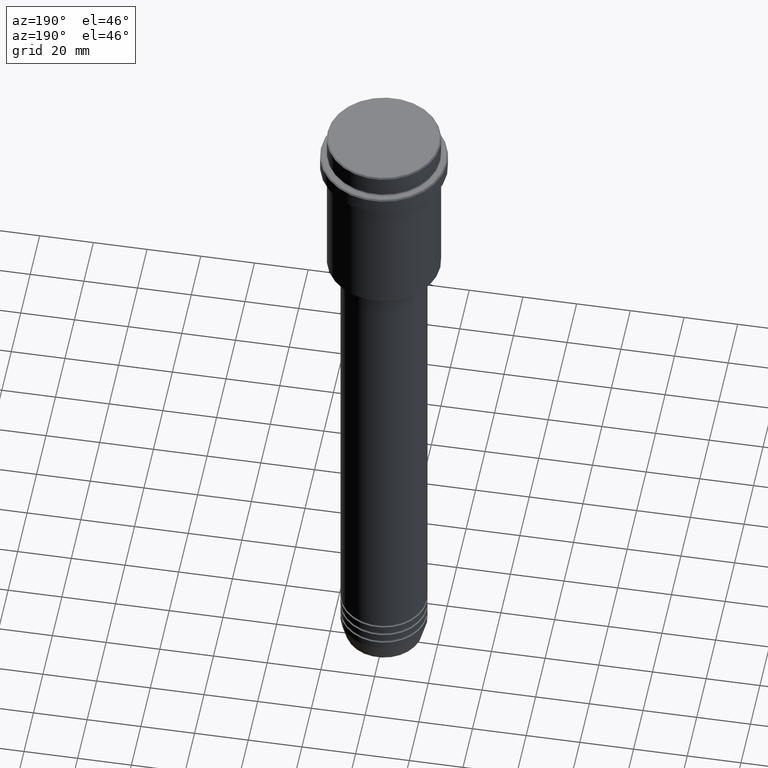
[diagram: clean part render]
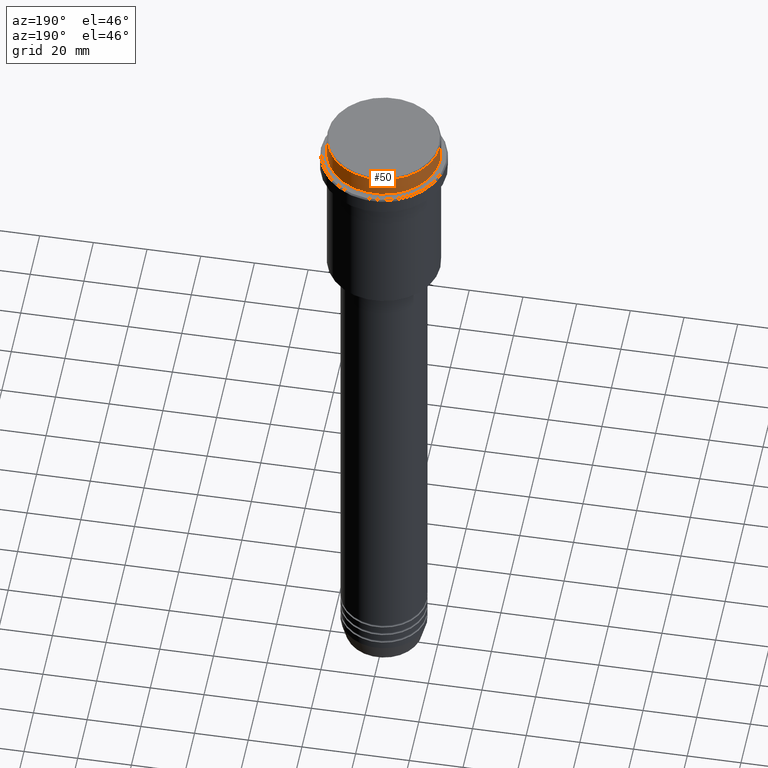
[diagram: same view with one face highlighted and labeled with its STEP entity id]
A machine part, auxiliary view. The second image highlights one B-rep face of the part: STEP entity #50.
In plain terms, the highlighted cylindrical surface (partial cylindrical patch) has radius 21 mm, axis along (-0, -0, 1).
Its self-contained STEP definition (entity closure, byte-faithful):
#50 = ADVANCED_FACE ( 'NONE', ( #926 ), #143, .T. ) ;
#86 = CIRCLE ( 'NONE', #475, 20.99999999999999645 ) ;
#89 = VECTOR ( 'NONE', #752, 1000.000000000000000 ) ;
#93 = CARTESIAN_POINT ( 'NONE',  ( 20.99999999999999645, 0.000000000000000000, 0.000000000000000000 ) ) ;
#143 = CYLINDRICAL_SURFACE ( 'NONE', #353, 20.99999999999999645 ) ;
#216 = VERTEX_POINT ( 'NONE', #839 ) ;
#228 = LINE ( 'NONE', #771, #89 ) ;
#233 = DIRECTION ( 'NONE',  ( -0.000000000000000000, -0.000000000000000000, 1.000000000000000000 ) ) ;
#353 = AXIS2_PLACEMENT_3D ( 'NONE', #1358, #1354, #1339 ) ;
#376 = CARTESIAN_POINT ( 'NONE',  ( 20.99999999999999645, 0.000000000000000000, -7.999999999999998224 ) ) ;
#389 = VERTEX_POINT ( 'NONE', #432 ) ;
#432 = CARTESIAN_POINT ( 'NONE',  ( -20.99999999999999645, 2.571758278209441267E-15, -7.999999999999998224 ) ) ;
#475 = AXIS2_PLACEMENT_3D ( 'NONE', #687, #1249, #778 ) ;
#507 = LINE ( 'NONE', #93, #831 ) ;
#537 = CARTESIAN_POINT ( 'NONE',  ( 0.000000000000000000, 0.000000000000000000, -7.999999999999998224 ) ) ;
#592 = VERTEX_POINT ( 'NONE', #376 ) ;
#602 = VERTEX_POINT ( 'NONE', #624 ) ;
#621 = ORIENTED_EDGE ( 'NONE', *, *, #1222, .T. ) ;
#624 = CARTESIAN_POINT ( 'NONE',  ( 20.99999999999999645, 0.000000000000000000, -0.4999999999999241163 ) ) ;
#684 = EDGE_CURVE ( 'NONE', #592, #602, #507, .T. ) ;
#687 = CARTESIAN_POINT ( 'NONE',  ( 0.000000000000000000, 0.000000000000000000, -0.4999999999999241163 ) ) ;
#752 = DIRECTION ( 'NONE',  ( -0.000000000000000000, -0.000000000000000000, 1.000000000000000000 ) ) ;
#771 = CARTESIAN_POINT ( 'NONE',  ( -20.99999999999999645, 2.571758278209441267E-15, 0.000000000000000000 ) ) ;
#778 = DIRECTION ( 'NONE',  ( 1.000000000000000000, 0.000000000000000000, 0.000000000000000000 ) ) ;
#830 = ORIENTED_EDGE ( 'NONE', *, *, #684, .F. ) ;
#831 = VECTOR ( 'NONE', #1073, 1000.000000000000000 ) ;
#839 = CARTESIAN_POINT ( 'NONE',  ( -20.99999999999999645, 2.571758278209441267E-15, -0.4999999999999241163 ) ) ;
#896 = ORIENTED_EDGE ( 'NONE', *, *, #940, .T. ) ;
#903 = CIRCLE ( 'NONE', #974, 20.99999999999999645 ) ;
#926 = FACE_OUTER_BOUND ( 'NONE', #992, .T. ) ;
#940 = EDGE_CURVE ( 'NONE', #216, #602, #86, .T. ) ;
#974 = AXIS2_PLACEMENT_3D ( 'NONE', #537, #233, #1298 ) ;
#992 = EDGE_LOOP ( 'NONE', ( #621, #1068, #896, #830 ) ) ;
#1068 = ORIENTED_EDGE ( 'NONE', *, *, #1256, .T. ) ;
#1073 = DIRECTION ( 'NONE',  ( -0.000000000000000000, -0.000000000000000000, 1.000000000000000000 ) ) ;
#1222 = EDGE_CURVE ( 'NONE', #592, #389, #903, .T. ) ;
#1249 = DIRECTION ( 'NONE',  ( 0.000000000000000000, 0.000000000000000000, -1.000000000000000000 ) ) ;
#1256 = EDGE_CURVE ( 'NONE', #389, #216, #228, .T. ) ;
#1298 = DIRECTION ( 'NONE',  ( 1.000000000000000000, 0.000000000000000000, 0.000000000000000000 ) ) ;
#1339 = DIRECTION ( 'NONE',  ( 1.000000000000000000, 0.000000000000000000, 0.000000000000000000 ) ) ;
#1354 = DIRECTION ( 'NONE',  ( -0.000000000000000000, -0.000000000000000000, 1.000000000000000000 ) ) ;
#1358 = CARTESIAN_POINT ( 'NONE',  ( 0.000000000000000000, 0.000000000000000000, 0.000000000000000000 ) ) ;